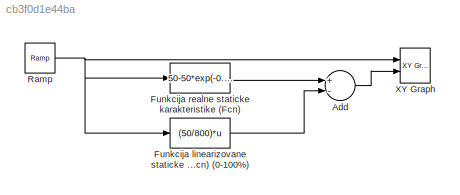
MODEL slx_cb3f0d1e44ba
KIND model
CONFIG AbsTol = auto
CONFIG FixedStep = auto
CONFIG MaxStep = auto
CONFIG MinStep = auto
CONFIG RelTol = 1e-3
CONFIG SampleTimeConstraint = Unconstrained
CONFIG Solver = VariableStepAuto
CONFIG SolverMode = Auto
CONFIG SolverName = VariableStepAuto
CONFIG StartTime = 0.0
CONFIG StopTime = 800
BLOCK [Sum] Add
  InputSameDT = off
  Inputs = +-
  OutDataTypeStr = Inherit: Inherit via internal rule
  Ports = [2, 1]
  SaturateOnIntegerOverflow = off
BLOCK [Fcn] Funkcija linearizovane staticke karakteristike (Fcn) (0-100%)
  Expr = (50/800)*u
BLOCK [Fcn] Funkcija realne staticke karakteristike (Fcn)
  Expr = 50-50*exp(-0.005*u)
BLOCK [Reference] Ramp  REF=simulink/Sources/Ramp
  Ports = [0, 1]
  SourceBlock = simulink/Sources/Ramp
  SourceType = Ramp
BLOCK [Reference] XY Graph  REF=simulink/Sinks/XY Graph
  Ports = [2]
  SourceBlock = simulink/Sinks/XY Graph
  SourceType = XY scope.
LINE Add:1 -> XY Graph:2
LINE Funkcija linearizovane staticke karakteristike (Fcn) (0-100%):1 -> Add:2
LINE Funkcija realne staticke karakteristike (Fcn):1 -> Add:1
NET Ramp:1 -> Funkcija linearizovane staticke karakteristike (Fcn) (0-100%):1, Funkcija realne staticke karakteristike (Fcn):1, XY Graph:1
note: NET lines group one-source signal fan-out (src -> all destinations, sorted); 1:1 wires keep LINE
